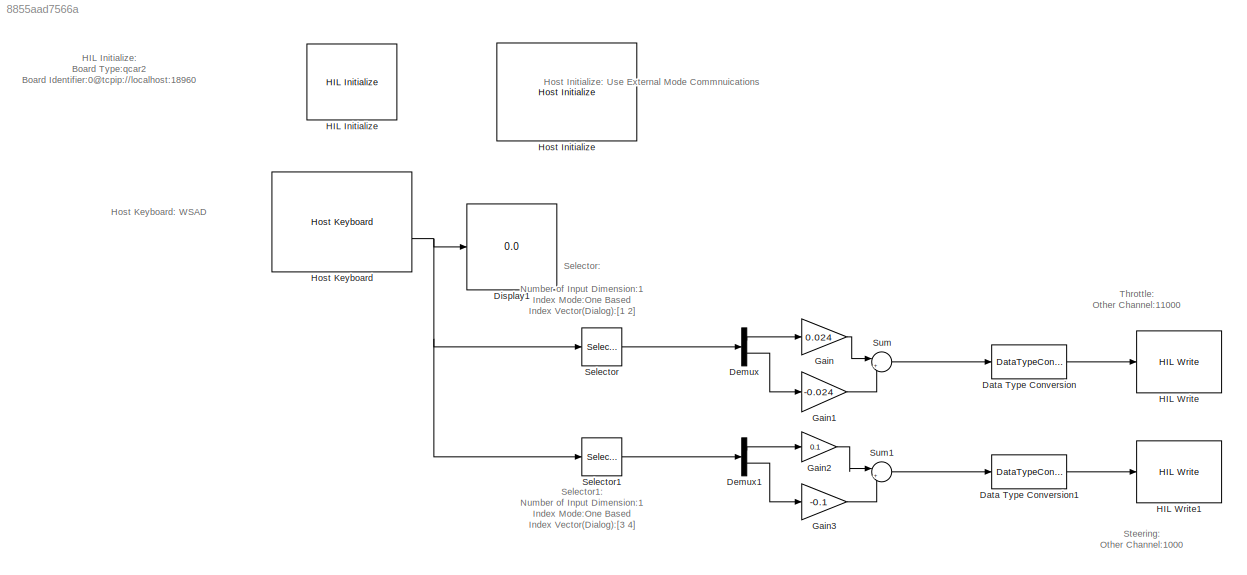
MODEL slx_8855aad7566a
KIND model
CONFIG AbsTol = auto
CONFIG EnableMultiTasking = on
CONFIG FixedStep = 0.01
CONFIG MaxStep = auto
CONFIG MinStep = auto
CONFIG RelTol = 1e-3
CONFIG SampleTimeConstraint = Unconstrained
CONFIG SolverName = FixedStepDiscrete
CONFIG StartTime = 0.0
CONFIG StopTime = inf
BLOCK [DataTypeConversion] Data Type Conversion
  OutDataTypeStr = double
  RndMeth = Floor
  SaturateOnIntegerOverflow = off
BLOCK [DataTypeConversion] Data Type Conversion1
  OutDataTypeStr = double
  RndMeth = Floor
  SaturateOnIntegerOverflow = off
BLOCK [Demux] Demux
  Outputs = 2
BLOCK [Demux] Demux1
  Outputs = 2
BLOCK [Display] Display1
  Decimation = 1
BLOCK [Gain] Gain
  Gain = 0.024
BLOCK [Gain] Gain1
  Gain = -0.024
BLOCK [Gain] Gain2
  Gain = 0.1
BLOCK [Gain] Gain3
  Gain = -0.1
BLOCK [Reference] HIL Initialize  REF=quarc_library/Data Acquisition/Generic/Configuration/HIL Initialize
  AttributesFormatString = %<object_name> (%<board_type>-%<board_number>)
  SourceBlock = quarc_library/Data Acquisition/Generic/Configuration/HIL Initialize
  SourceProductName = QUARC Targets
  SourceType = HIL Initialize
  UserDataPersistent = on
BLOCK [Reference] HIL Write  REF=quarc_library/Data Acquisition/Generic/Immediate I//O/HIL Write
  AttributesFormatString = (%<object_name>)
  SourceBlock = quarc_library/Data Acquisition/Generic/Immediate I//O/HIL Write
  SourceProductName = QUARC Targets
  SourceType = HIL Write
  UserDataPersistent = on
BLOCK [Reference] HIL Write1  REF=quarc_library/Data Acquisition/Generic/Immediate I//O/HIL Write
  AttributesFormatString = (%<object_name>)
  SourceBlock = quarc_library/Data Acquisition/Generic/Immediate I//O/HIL Write
  SourceProductName = QUARC Targets
  SourceType = HIL Write
  UserDataPersistent = on
BLOCK [Reference] Host Initialize  REF=quarc_library/Devices/Peripherals/Host/Host Initialize
  SourceBlock = quarc_library/Devices/Peripherals/Host/Host Initialize
  SourceProductName = QUARC Targets
  SourceType = Host Initialize
BLOCK [Reference] Host Keyboard  REF=quarc_library/Devices/Peripherals/Host/Host Keyboard
  SourceBlock = quarc_library/Devices/Peripherals/Host/Host Keyboard
  SourceProductName = QUARC Targets
  SourceType = Host Keyboard
BLOCK [Selector] Selector
  IndexOptions = Index vector (dialog)
  Indices = [1 2]
  InputPortWidth = 4
  OutputSizes = 1
BLOCK [Selector] Selector1
  IndexOptions = Index vector (dialog)
  Indices = [3 4]
  InputPortWidth = 4
  OutputSizes = 1
BLOCK [Sum] Sum
  Inputs = |++
BLOCK [Sum] Sum1
  Inputs = |++
ANNOTATION (root): HIL Initialize: Board Type:qcar2 Board Identifier:0@tcpip://localhost:18960
ANNOTATION (root): Host Initialize: Use External Mode Commnuications
ANNOTATION (root): Host Keyboard: WSAD
ANNOTATION (root): Selector1: Number of Input Dimension:1 Index Mode:One Based Index Vector(Dialog):[3 4]
ANNOTATION (root): Selector: Number of Input Dimension:1 Index Mode:One Based Index Vector(Dialog):[1 2]
ANNOTATION (root): Steering: Other Channel:1000
ANNOTATION (root): Throttle: Other Channel:11000
LINE Data Type Conversion1:1 -> HIL Write1:1
LINE Data Type Conversion:1 -> HIL Write:1
LINE Demux1:1 -> Gain2:1
LINE Demux1:2 -> Gain3:1
LINE Demux:1 -> Gain:1
LINE Demux:2 -> Gain1:1
LINE Gain1:1 -> Sum:2
LINE Gain2:1 -> Sum1:1
LINE Gain3:1 -> Sum1:2
LINE Gain:1 -> Sum:1
NET Host Keyboard:2 -> Display1:1, Selector1:1, Selector:1
LINE Selector1:1 -> Demux1:1
LINE Selector:1 -> Demux:1
LINE Sum1:1 -> Data Type Conversion1:1
LINE Sum:1 -> Data Type Conversion:1
note: NET lines group one-source signal fan-out (src -> all destinations, sorted); 1:1 wires keep LINE
